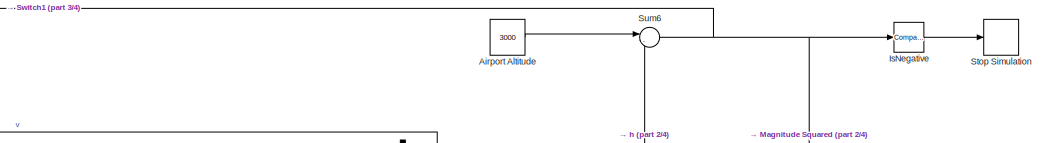
[diagram: root canvas - part 1/4, top center region]
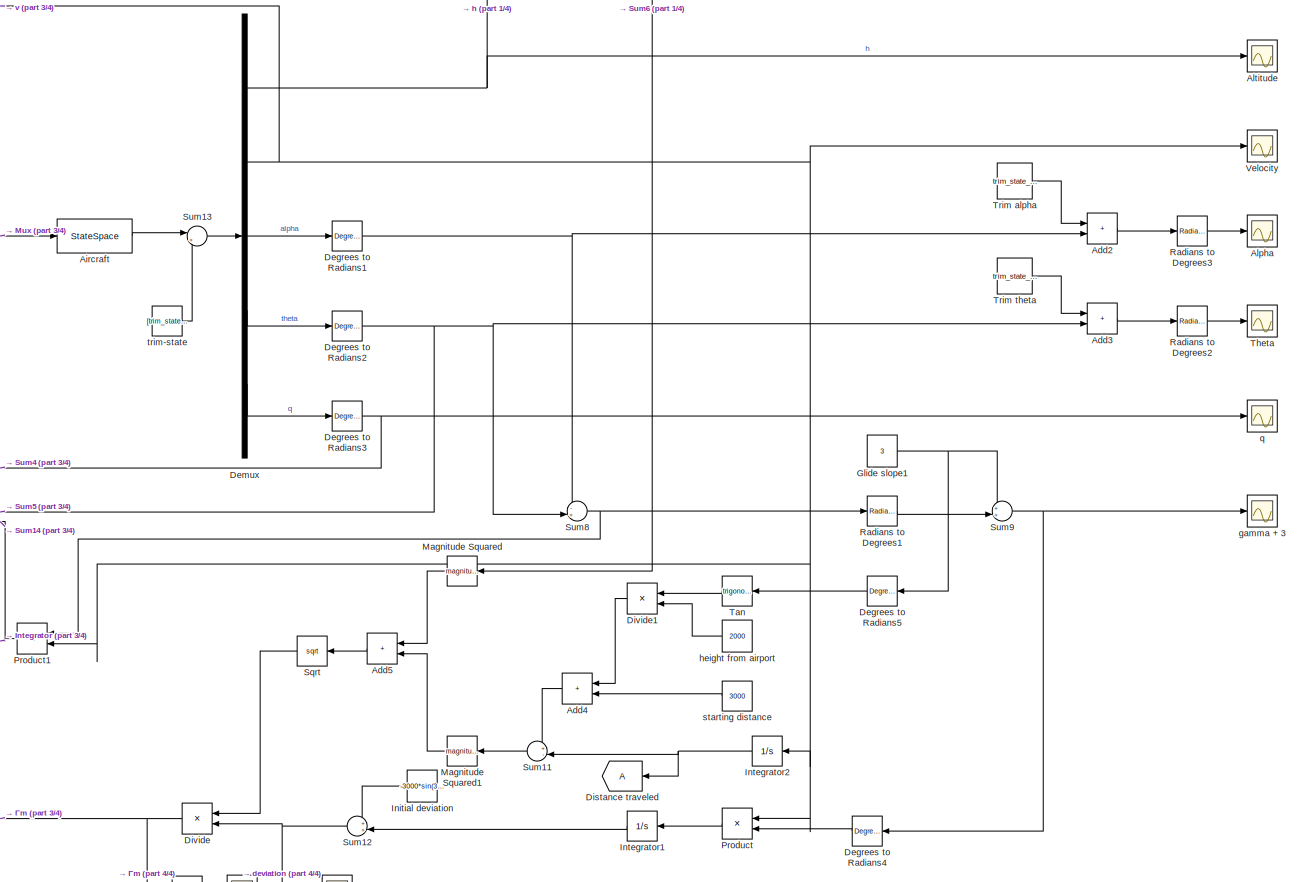
[diagram: root canvas - part 2/4, right side, full height]
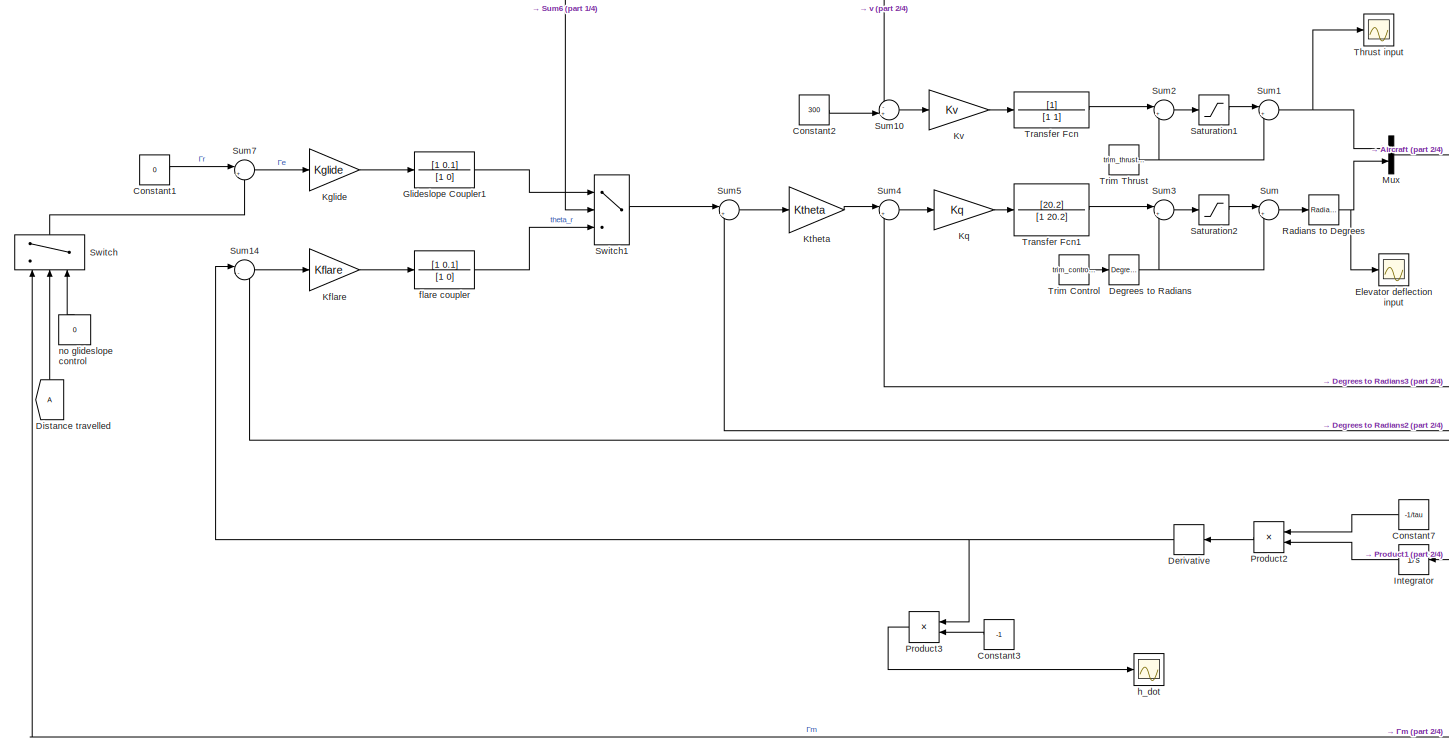
[diagram: root canvas - part 3/4, middle left region]
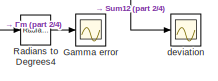
[diagram: root canvas - part 4/4, bottom center region]
MODEL slx_11a459da2ab8
KIND model
CONFIG AbsTol = auto
CONFIG EnableMultiTasking = off
CONFIG FixedStep = auto
CONFIG MaxStep = auto
CONFIG MinStep = auto
CONFIG RelTol = 1e-3
CONFIG SampleTimeConstraint = Unconstrained
CONFIG SolverName = VariableStepAuto
CONFIG StartTime = 0.0
CONFIG StopTime = 2000
BLOCK [TransferFcn]  Glideslope Coupler1
  Denominator = [1 0]
  Numerator = [1 0.1]
BLOCK [Sum] Add2
  IconShape = rectangular
  Ports = [2, 1]
BLOCK [Sum] Add3
  IconShape = rectangular
  Ports = [2, 1]
BLOCK [Sum] Add4
  IconShape = rectangular
  Ports = [2, 1]
BLOCK [Sum] Add5
  IconShape = rectangular
  Ports = [2, 1]
BLOCK [StateSpace] Aircraft
  A = A_red_lo
  B = B_red_lo
  C = C_red_lo
  D = D_red_lo
  InitialCondition = 0
  Ports = [1, 1]
BLOCK [Constant] Airport Altitude
  Value = 3000
BLOCK [Scope] Alpha
  Floating = off
  NumInputPorts = 1
  Ports = [1]
  ScopeSpecificationString = Simulink.scopes.TimeScopeBlockCfg('CurrentConfiguration', extmgr.ConfigurationSet(extmgr.Configuration('Core','General UI',true),extmgr.Configuration('Core','Source UI',true),extmgr.Configuration('Sources','WiredSimulink',true,'DataLogging',true,'DataLoggingVariableName','Alpha'),extmgr.Configuration('Visuals','Time Domain',true,'SerializedDisplays',{struct('MinYLimReal','-196.89465','MaxYLimReal'...<+1427ch>
BLOCK [Scope] Altitude
  Floating = off
  NumInputPorts = 1
  Ports = [1]
  ScopeSpecificationString = Simulink.scopes.TimeScopeBlockCfg('CurrentConfiguration', extmgr.ConfigurationSet(extmgr.Configuration('Core','General UI',true),extmgr.Configuration('Core','Source UI',true),extmgr.Configuration('Sources','WiredSimulink',true,'DataLoggingVariableName','Altitude','DataLogging',true),extmgr.Configuration('Visuals','Time Domain',true,'SerializedDisplays',{struct('MinYLimReal','2749.99983','MaxYLimRe...<+1494ch>
BLOCK [Constant] Constant1
  Value = 0
BLOCK [Constant] Constant2
  Value = 300
BLOCK [Constant] Constant3
  Value = -1
BLOCK [Constant] Constant7
  Value = -1/tau
BLOCK [Reference] Degrees to Radians  REF=simulink_extras/Transformations/Degrees to
Radians
  Ports = [1, 1]
  SourceBlock = simulink_extras/Transformations/Degrees to\nRadians
  SourceProductBaseCode = SL
  SourceType = DegreesToRadians
BLOCK [Reference] Degrees to Radians1  REF=simulink_extras/Transformations/Degrees to
Radians
  Ports = [1, 1]
  SourceBlock = simulink_extras/Transformations/Degrees to\nRadians
  SourceProductBaseCode = SL
  SourceType = DegreesToRadians
BLOCK [Reference] Degrees to Radians2  REF=simulink_extras/Transformations/Degrees to
Radians
  Ports = [1, 1]
  SourceBlock = simulink_extras/Transformations/Degrees to\nRadians
  SourceProductBaseCode = SL
  SourceType = DegreesToRadians
BLOCK [Reference] Degrees to Radians3  REF=simulink_extras/Transformations/Degrees to
Radians
  Ports = [1, 1]
  SourceBlock = simulink_extras/Transformations/Degrees to\nRadians
  SourceProductBaseCode = SL
  SourceType = DegreesToRadians
BLOCK [Reference] Degrees to Radians4  REF=simulink_extras/Transformations/Degrees to
Radians
  Ports = [1, 1]
  SourceBlock = simulink_extras/Transformations/Degrees to\nRadians
  SourceProductBaseCode = SL
  SourceType = DegreesToRadians
BLOCK [Reference] Degrees to Radians5  REF=simulink_extras/Transformations/Degrees to
Radians
  Ports = [1, 1]
  SourceBlock = simulink_extras/Transformations/Degrees to\nRadians
  SourceProductBaseCode = SL
  SourceType = DegreesToRadians
BLOCK [Demux] Demux
  Outputs = 5
  Ports = [1, 5]
BLOCK [Derivative] Derivative
BLOCK [Goto] Distance traveled
BLOCK [From] Distance travelled
  NameLocation = right
BLOCK [Product] Divide
  Inputs = /*
  Ports = [2, 1]
BLOCK [Product] Divide1
  Inputs = /*
  Ports = [2, 1]
BLOCK [Scope] Elevator deflection input
  Floating = off
  NumInputPorts = 1
  Ports = [1]
  ScopeSpecificationString = Simulink.scopes.TimeScopeBlockCfg('CurrentConfiguration', extmgr.ConfigurationSet(extmgr.Configuration('Core','General UI',true),extmgr.Configuration('Core','Source UI',true),extmgr.Configuration('Sources','WiredSimulink',true,'DataLoggingVariableName','elevator_deflection_input','DataLogging',true),extmgr.Configuration('Visuals','Time Domain',true,'SerializedDisplays',{struct('MinYLimReal','2749....<+1526ch>
BLOCK [Scope] Gamma error
  Floating = off
  NumInputPorts = 1
  Ports = [1]
  ScopeSpecificationString = Simulink.scopes.TimeScopeBlockCfg('CurrentConfiguration', extmgr.ConfigurationSet(extmgr.Configuration('Core','General UI',true),extmgr.Configuration('Core','Source UI',true),extmgr.Configuration('Sources','WiredSimulink',true,'DataLoggingVariableName','Gamma','DataLogging',true),extmgr.Configuration('Visuals','Time Domain',true,'SerializedDisplays',{struct('MinYLimReal','-0.40261','MaxYLimReal','...<+1459ch>
BLOCK [Constant] Glide slope1
  Value = 3
BLOCK [Constant] Initial deviation
  Value = -3000*sin(3*pi/180)
BLOCK [Integrator] Integrator
  Ports = [1, 1]
BLOCK [Integrator] Integrator1
  Ports = [1, 1]
BLOCK [Integrator] Integrator2
  Ports = [1, 1]
BLOCK [Reference] IsNegative  REF=simulink/Logic and Bit
Operations/Compare
To Zero
  Ports = [1, 1]
  SourceBlock = simulink/Logic and Bit\nOperations/Compare\nTo Zero
  SourceProductBaseCode = SL
  SourceType = Compare To Zero
BLOCK [Gain] Kflare
  Gain = Kflare
BLOCK [Gain] Kglide
  Gain = Kglide
BLOCK [Gain] Kq
  Gain = Kq
BLOCK [Gain] Ktheta
  Gain = Ktheta
BLOCK [Gain] Kv
  Gain = Kv
BLOCK [Math] Magnitude Squared
  Operator = magnitude^2
  Ports = [1, 1]
BLOCK [Math] Magnitude Squared1
  Operator = magnitude^2
  Ports = [1, 1]
BLOCK [Mux] Mux
  DisplayOption = bar
  Inputs = 2
  Ports = [2, 1]
BLOCK [Product] Product
  Ports = [2, 1]
BLOCK [Product] Product1
  Ports = [2, 1]
BLOCK [Product] Product2
  Ports = [2, 1]
BLOCK [Product] Product3
  Ports = [2, 1]
BLOCK [Reference] Radians to Degrees  REF=simulink_extras/Transformations/Radians
to Degrees
  Ports = [1, 1]
  SourceBlock = simulink_extras/Transformations/Radians\nto Degrees
  SourceProductBaseCode = SL
  SourceType = RadiansToDegrees
BLOCK [Reference] Radians to Degrees1  REF=simulink_extras/Transformations/Radians
to Degrees
  Ports = [1, 1]
  SourceBlock = simulink_extras/Transformations/Radians\nto Degrees
  SourceProductBaseCode = SL
  SourceType = RadiansToDegrees
BLOCK [Reference] Radians to Degrees2  REF=simulink_extras/Transformations/Radians
to Degrees
  Ports = [1, 1]
  SourceBlock = simulink_extras/Transformations/Radians\nto Degrees
  SourceProductBaseCode = SL
  SourceType = RadiansToDegrees
BLOCK [Reference] Radians to Degrees3  REF=simulink_extras/Transformations/Radians
to Degrees
  Ports = [1, 1]
  SourceBlock = simulink_extras/Transformations/Radians\nto Degrees
  SourceProductBaseCode = SL
  SourceType = RadiansToDegrees
BLOCK [Reference] Radians to Degrees4  REF=simulink_extras/Transformations/Radians
to Degrees
  Ports = [1, 1]
  SourceBlock = simulink_extras/Transformations/Radians\nto Degrees
  SourceProductBaseCode = SL
  SourceType = RadiansToDegrees
BLOCK [Saturate] Saturation1
  LowerLimit = -1826.82
  UpperLimit = 16173.18
BLOCK [Saturate] Saturation2
  LowerLimit = -20.81*pi/180
  UpperLimit = 29.19*pi/180
BLOCK [Sqrt] Sqrt
BLOCK [Stop] Stop Simulation
BLOCK [Sum] Sum
  Inputs = |+-
  Ports = [2, 1]
BLOCK [Sum] Sum1
  Inputs = |+-
  Ports = [2, 1]
BLOCK [Sum] Sum10
  Inputs = -+|
  Ports = [2, 1]
BLOCK [Sum] Sum11
  Inputs = +-|
  Ports = [2, 1]
BLOCK [Sum] Sum12
  Inputs = ++|
  Ports = [2, 1]
BLOCK [Sum] Sum13
  Inputs = |++
  Ports = [2, 1]
BLOCK [Sum] Sum14
  Inputs = |--
  Ports = [2, 1]
BLOCK [Sum] Sum2
  Inputs = |++
  Ports = [2, 1]
BLOCK [Sum] Sum3
  Inputs = |++
  Ports = [2, 1]
BLOCK [Sum] Sum4
  Inputs = |+-
  Ports = [2, 1]
BLOCK [Sum] Sum5
  Inputs = |+-
  Ports = [2, 1]
BLOCK [Sum] Sum6
  Inputs = |-+
  NameLocation = top
  Ports = [2, 1]
BLOCK [Sum] Sum7
  Inputs = |+-
  Ports = [2, 1]
BLOCK [Sum] Sum8
  Inputs = -+|
  Ports = [2, 1]
BLOCK [Sum] Sum9
  Inputs = ++|
  Ports = [2, 1]
BLOCK [Switch] Switch
  InputSameDT = off
  NameLocation = left
  SaturateOnIntegerOverflow = off
  Threshold = 3000
BLOCK [Switch] Switch1
  InputSameDT = off
  NameLocation = top
  SaturateOnIntegerOverflow = off
  Threshold = hflare
BLOCK [Trigonometry] Tan
  NameLocation = top
  Ports = [1, 1]
BLOCK [Scope] Theta
  Floating = off
  NumInputPorts = 1
  Ports = [1]
  ScopeSpecificationString = Simulink.scopes.TimeScopeBlockCfg('CurrentConfiguration', extmgr.ConfigurationSet(extmgr.Configuration('Core','General UI',true),extmgr.Configuration('Core','Source UI',true),extmgr.Configuration('Sources','WiredSimulink',true,'DataLoggingVariableName','Theta','DataLogging',true),extmgr.Configuration('Visuals','Time Domain',true,'SerializedDisplays',{struct('MinYLimReal','-347.75875','MaxYLimReal'...<+1431ch>
BLOCK [Scope] Thrust input
  Floating = off
  NumInputPorts = 1
  Ports = [1]
  ScopeSpecificationString = Simulink.scopes.TimeScopeBlockCfg('CurrentConfiguration', extmgr.ConfigurationSet(extmgr.Configuration('Core','General UI',true),extmgr.Configuration('Core','Source UI',true),extmgr.Configuration('Sources','WiredSimulink',true,'DataLoggingVariableName','Thrust_input','DataLogging',true),extmgr.Configuration('Visuals','Time Domain',true,'SerializedDisplays',{struct('MinYLimReal','2749.99983','MaxYL...<+1498ch>
BLOCK [TransferFcn] Transfer Fcn
  Denominator = [1 1]
BLOCK [TransferFcn] Transfer Fcn1
  Denominator = [1 20.2]
  Numerator = [20.2]
BLOCK [Constant] Trim Control
  Value = trim_control_lo(1)
BLOCK [Constant] Trim Thrust
  Value = trim_thrust_lo
BLOCK [Constant] Trim alpha
  Value = trim_state_lo(8)
BLOCK [Constant] Trim theta
  Value = trim_state_lo(5)
BLOCK [Scope] Velocity
  Floating = off
  NumInputPorts = 1
  Ports = [1]
  ScopeSpecificationString = Simulink.scopes.TimeScopeBlockCfg('CurrentConfiguration', extmgr.ConfigurationSet(extmgr.Configuration('Core','General UI',true),extmgr.Configuration('Core','Source UI',true),extmgr.Configuration('Sources','WiredSimulink',true,'DataLoggingVariableName','Velocity','DataLogging',true),extmgr.Configuration('Visuals','Time Domain',true,'SerializedDisplays',{struct('MinYLimReal','271.55567','MaxYLimRea...<+1460ch>
BLOCK [Scope] deviation
  Floating = off
  NumInputPorts = 1
  Ports = [1]
  ScopeSpecificationString = Simulink.scopes.TimeScopeBlockCfg('CurrentConfiguration', extmgr.ConfigurationSet(extmgr.Configuration('Core','General UI',true),extmgr.Configuration('Core','Source UI',true),extmgr.Configuration('Sources','WiredSimulink',true,'DataLoggingVariableName','Gamma1','DataLogging',true),extmgr.Configuration('Visuals','Time Domain',true,'SerializedDisplays',{struct('MinYLimReal','-748.56865','MaxYLimReal...<+1502ch>
BLOCK [TransferFcn] flare coupler
  Denominator = [1 0]
  Numerator = [1 0.1]
BLOCK [Scope] gamma + 3
  Floating = off
  NumInputPorts = 1
  Ports = [1]
  ScopeSpecificationString = Simulink.scopes.TimeScopeBlockCfg('CurrentConfiguration', extmgr.ConfigurationSet(extmgr.Configuration('Core','General UI',true),extmgr.Configuration('Core','Source UI',true),extmgr.Configuration('Sources','WiredSimulink',true,'DataLoggingVariableName','gamma','DataLogging',true),extmgr.Configuration('Visuals','Time Domain',true,'SerializedDisplays',{struct('MinYLimReal','-149.67253','MaxYLimReal'...<+1414ch>
BLOCK [Scope] h_dot
  Floating = off
  NumInputPorts = 1
  Ports = [1]
  ScopeSpecificationString = Simulink.scopes.TimeScopeBlockCfg('CurrentConfiguration', extmgr.ConfigurationSet(extmgr.Configuration('Core','General UI',true),extmgr.Configuration('Core','Source UI',true),extmgr.Configuration('Sources','WiredSimulink',true,'DataLoggingVariableName','h_dot','DataLogging',true),extmgr.Configuration('Visuals','Time Domain',true,'SerializedDisplays',{struct('MinYLimReal','-21.33528','MaxYLimReal',...<+1410ch>
BLOCK [Constant] height from airport
  Value = 2000
BLOCK [Constant] no glideslope control
  NameLocation = right
  Value = 0
BLOCK [Scope] q
  Floating = off
  NumInputPorts = 1
  Ports = [1]
  ScopeSpecificationString = Simulink.scopes.TimeScopeBlockCfg('CurrentConfiguration', extmgr.ConfigurationSet(extmgr.Configuration('Core','General UI',true),extmgr.Configuration('Core','Source UI',true),extmgr.Configuration('Sources','WiredSimulink',true,'DataLoggingVariableName','q','DataLogging',true),extmgr.Configuration('Visuals','Time Domain',true,'SerializedDisplays',{struct('MinYLimReal','-3.20507','MaxYLimReal','1.60...<+1413ch>
BLOCK [Constant] starting distance
  Value = 3000
BLOCK [Constant] trim-state
  Value = [trim_state_lo(3); trim_state_lo(7); trim_state_lo(8); trim_state_lo(5); trim_state_lo(11) ]
LINE  Glideslope Coupler1:1 -> Switch1:1
LINE Add2:1 -> Radians to Degrees3:1
LINE Add3:1 -> Radians to Degrees2:1
LINE Add4:1 -> Sum11:1
LINE Add5:1 -> Sqrt:1
LINE Aircraft:1 -> Sum13:1
LINE Airport Altitude:1 -> Sum6:1
LINE Constant1:1 -> Sum7:1
LINE Constant2:1 -> Sum10:2
LINE Constant3:1 -> Product3:2
LINE Constant7:1 -> Product2:1
NET Degrees to Radians1:1 -> Add2:2, Sum8:1
NET Degrees to Radians2:1 -> Add3:2, Sum5:2, Sum8:2
NET Degrees to Radians3:1 -> Sum4:2, q:1
LINE Degrees to Radians4:1 -> Product:2
LINE Degrees to Radians5:1 -> Tan:1
NET Degrees to Radians:1 -> Sum3:2, Sum:2
NET Demux:1 -> Altitude:1, Sum6:2
NET Demux:2 -> Integrator2:1, Product1:2, Product:1, Sum10:1, Velocity:1
LINE Demux:3 -> Degrees to Radians1:1
LINE Demux:4 -> Degrees to Radians2:1
LINE Demux:5 -> Degrees to Radians3:1
NET Derivative:1 -> Product3:1, Sum14:1
LINE Distance travelled:1 -> Switch:2
LINE Divide1:1 -> Add4:1
NET Divide:1 -> Radians to Degrees4:1, Switch:1
NET Glide slope1:1 -> Degrees to Radians5:1, Sum9:1
LINE Initial deviation:1 -> Sum12:1
LINE Integrator1:1 -> Sum12:2
NET Integrator2:1 -> Distance traveled:1, Sum11:2
LINE Integrator:1 -> Product2:2
LINE IsNegative:1 -> Stop Simulation:1
LINE Kflare:1 -> flare coupler:1
LINE Kglide:1 ->  Glideslope Coupler1:1
LINE Kq:1 -> Transfer Fcn1:1
LINE Ktheta:1 -> Sum4:1
LINE Kv:1 -> Transfer Fcn:1
LINE Magnitude Squared1:1 -> Add5:2
LINE Magnitude Squared:1 -> Add5:1
LINE Mux:1 -> Aircraft:1
NET Product1:1 -> Integrator:1, Sum14:2
LINE Product2:1 -> Derivative:1
LINE Product3:1 -> h_dot:1
LINE Product:1 -> Integrator1:1
LINE Radians to Degrees1:1 -> Sum9:2
LINE Radians to Degrees2:1 -> Theta:1
LINE Radians to Degrees3:1 -> Alpha:1
LINE Radians to Degrees4:1 -> Gamma error:1
NET Radians to Degrees:1 -> Elevator deflection input:1, Mux:2
LINE Saturation1:1 -> Sum1:1
LINE Saturation2:1 -> Sum:1
LINE Sqrt:1 -> Divide:1
LINE Sum10:1 -> Kv:1
LINE Sum11:1 -> Magnitude Squared1:1
NET Sum12:1 -> Divide:2, deviation:1
LINE Sum13:1 -> Demux:1
LINE Sum14:1 -> Kflare:1
NET Sum1:1 -> Mux:1, Thrust input:1
LINE Sum2:1 -> Saturation1:1
LINE Sum3:1 -> Saturation2:1
LINE Sum4:1 -> Kq:1
LINE Sum5:1 -> Ktheta:1
NET Sum6:1 -> IsNegative:1, Magnitude Squared:1, Switch1:2
LINE Sum7:1 -> Kglide:1
NET Sum8:1 -> Product1:1, Radians to Degrees1:1
NET Sum9:1 -> Degrees to Radians4:1, gamma + 3:1
LINE Sum:1 -> Radians to Degrees:1
LINE Switch1:1 -> Sum5:1
LINE Switch:1 -> Sum7:2
LINE Tan:1 -> Divide1:1
LINE Transfer Fcn1:1 -> Sum3:1
LINE Transfer Fcn:1 -> Sum2:1
LINE Trim Control:1 -> Degrees to Radians:1
NET Trim Thrust:1 -> Sum1:2, Sum2:2
LINE Trim alpha:1 -> Add2:1
LINE Trim theta:1 -> Add3:1
LINE flare coupler:1 -> Switch1:3
LINE height from airport:1 -> Divide1:2
LINE no glideslope control:1 -> Switch:3
LINE starting distance:1 -> Add4:2
LINE trim-state:1 -> Sum13:2
note: NET lines group one-source signal fan-out (src -> all destinations, sorted); 1:1 wires keep LINE
